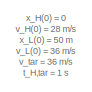
[diagram: root canvas - part 1/3, top left region]
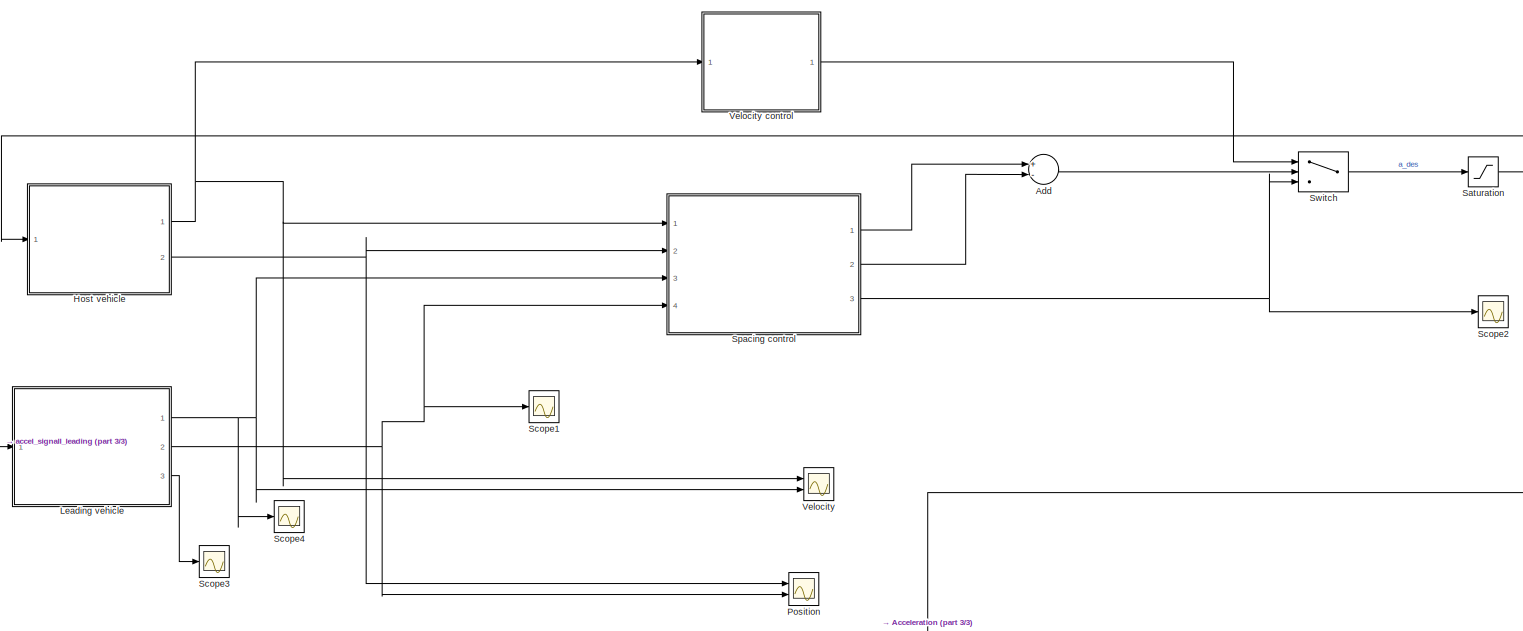
[diagram: root canvas - part 2/3, central region]
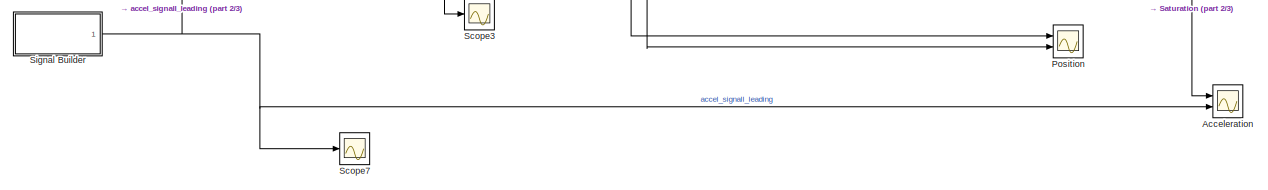
[diagram: root canvas - part 3/3, bottom center region]
MODEL slx_f30c1024a4a0
KIND model
CONFIG AbsTol = auto
CONFIG EnableMultiTasking = off
CONFIG FixedStep = auto
CONFIG MaxStep = auto
CONFIG MinStep = auto
CONFIG RelTol = 1e-12
CONFIG SampleTimeConstraint = Unconstrained
CONFIG Solver = VariableStepAuto
CONFIG SolverName = VariableStepAuto
CONFIG StartTime = 0.0
CONFIG StopTime = 70
WORKSPACE source: MAT-file member
WORKSPACE d_tar = 20
BLOCK [Scope] Acceleration
  Floating = off
  NumInputPorts = 2
  Ports = [2]
  ScopeSpecificationString = Simulink.scopes.TimeScopeBlockCfg('CurrentConfiguration', extmgr.ConfigurationSet(extmgr.Configuration('Core','General UI',true),extmgr.Configuration('Core','Source UI',true),extmgr.Configuration('Sources','WiredSimulink',true,'DataLoggingVariableName','ScopeData7'),extmgr.Configuration('Visuals','Time Domain',true,'SerializedDisplays',{struct('MinYLimReal','-3.875','MaxYLimReal','4.875','YLabelRe...<+1456ch>
BLOCK [Sum] Add
  InputSameDT = off
  Inputs = +-
  OutDataTypeStr = Inherit: Inherit via internal rule
  Ports = [2, 1]
  SaturateOnIntegerOverflow = off
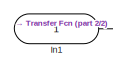
[diagram: Host vehicle - part 1/2, top right region]
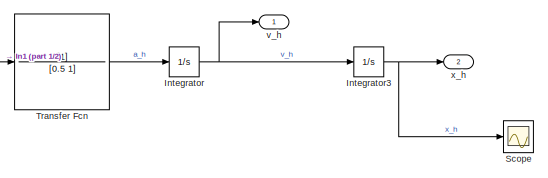
[diagram: Host vehicle - part 2/2, bottom left region]
BLOCK [SubSystem] Host vehicle
  Ports = [1, 2]
  RequestExecContextInheritance = off
BLOCK [Inport] Host vehicle/In1
  IconDisplay = Port number
BLOCK [Integrator] Host vehicle/Integrator
  InitialCondition = v_H0
  Ports = [1, 1]
BLOCK [Integrator] Host vehicle/Integrator3
  InitialCondition = x_H0
  Ports = [1, 1]
BLOCK [Scope] Host vehicle/Scope
  Floating = off
  NumInputPorts = 1
  Ports = [1]
  ScopeSpecificationString = Simulink.scopes.TimeScopeBlockCfg('CurrentConfiguration', extmgr.ConfigurationSet(extmgr.Configuration('Core','General UI',true),extmgr.Configuration('Core','Source UI',true),extmgr.Configuration('Sources','WiredSimulink',true),extmgr.Configuration('Visuals','Time Domain',true,'SerializedDisplays',{struct('MinYLimReal','-289.40886','MaxYLimReal','2604.67977','YLabelReal','','MinYLimMag',' 0.00000'...<+1370ch>
BLOCK [TransferFcn] Host vehicle/Transfer Fcn
  Denominator = [0.5 1]
BLOCK [Outport] Host vehicle/v_h
  IconDisplay = Port number
BLOCK [Outport] Host vehicle/x_h
  IconDisplay = Port number
  Port = 2
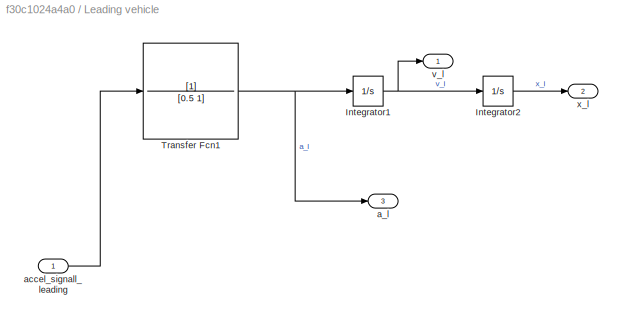
BLOCK [SubSystem] Leading vehicle
  Ports = [1, 3]
  RequestExecContextInheritance = off
BLOCK [Integrator] Leading vehicle/Integrator1
  InitialCondition = v_L0
  Ports = [1, 1]
BLOCK [Integrator] Leading vehicle/Integrator2
  InitialCondition = x_L0
  Ports = [1, 1]
BLOCK [TransferFcn] Leading vehicle/Transfer Fcn1
  Denominator = [0.5 1]
BLOCK [Outport] Leading vehicle/a_l
  IconDisplay = Port number
  Port = 3
BLOCK [Inport] Leading vehicle/accel_signall_leading
  IconDisplay = Port number
BLOCK [Outport] Leading vehicle/v_l
  IconDisplay = Port number
BLOCK [Outport] Leading vehicle/x_l
  IconDisplay = Port number
  Port = 2
BLOCK [Scope] Position
  Floating = off
  NumInputPorts = 2
  Ports = [2]
  ScopeSpecificationString = Simulink.scopes.TimeScopeBlockCfg('CurrentConfiguration', extmgr.ConfigurationSet(extmgr.Configuration('Core','General UI',true),extmgr.Configuration('Core','Source UI',true),extmgr.Configuration('Sources','WiredSimulink',true,'DataLoggingVariableName','ScopeData8'),extmgr.Configuration('Visuals','Time Domain',true,'SerializedDisplays',{struct('MinYLimReal','-295.00000','MaxYLimReal','2655.00000',...<+1492ch>
BLOCK [Saturate] Saturation
  InputPortMap = u0
  LowerLimit = -3
  Ports = [1, 1]
  UpperLimit = 5
BLOCK [Scope] Scope1
  Floating = off
  NumInputPorts = 1
  Ports = [1]
  ScopeSpecificationString = Simulink.scopes.TimeScopeBlockCfg('CurrentConfiguration', extmgr.ConfigurationSet(extmgr.Configuration('Core','General UI',true),extmgr.Configuration('Core','Source UI',true),extmgr.Configuration('Sources','WiredSimulink',true,'DataLoggingVariableName','ScopeData1'),extmgr.Configuration('Visuals','Time Domain',true,'SerializedDisplays',{struct('MinYLimReal','-238.75','MaxYLimReal','2648.75','YLabe...<+1410ch>
BLOCK [Scope] Scope2
  Floating = off
  NumInputPorts = 1
  Ports = [1]
  ScopeSpecificationString = Simulink.scopes.TimeScopeBlockCfg('CurrentConfiguration', extmgr.ConfigurationSet(extmgr.Configuration('Core','General UI',true),extmgr.Configuration('Core','Source UI',true),extmgr.Configuration('Sources','WiredSimulink',true,'DataLoggingVariableName','ScopeData1'),extmgr.Configuration('Visuals','Time Domain',true,'SerializedDisplays',{struct('MinYLimReal','-4.42689','MaxYLimReal','8.24769','YLab...<+1380ch>
BLOCK [Scope] Scope3
  Floating = off
  NumInputPorts = 1
  Ports = [1]
  ScopeSpecificationString = Simulink.scopes.TimeScopeBlockCfg('CurrentConfiguration', extmgr.ConfigurationSet(extmgr.Configuration('Core','General UI',true),extmgr.Configuration('Core','Source UI',true),extmgr.Configuration('Sources','WiredSimulink',true,'DataLoggingVariableName','ScopeData2'),extmgr.Configuration('Visuals','Time Domain',true,'SerializedDisplays',{struct('MinYLimReal','-2.49768','MaxYLimReal','2.49763','YLab...<+1410ch>
BLOCK [Scope] Scope4
  Floating = off
  NumInputPorts = 1
  Ports = [1]
  ScopeSpecificationString = Simulink.scopes.TimeScopeBlockCfg('CurrentConfiguration', extmgr.ConfigurationSet(extmgr.Configuration('Core','General UI',true),extmgr.Configuration('Core','Source UI',true),extmgr.Configuration('Sources','WiredSimulink',true,'DataLoggingVariableName','ScopeData3'),extmgr.Configuration('Visuals','Time Domain',true,'SerializedDisplays',{struct('MinYLimReal','28.125','MaxYLimReal','36.875','YLabelR...<+1400ch>
BLOCK [Scope] Scope7
  Floating = off
  NumInputPorts = 1
  Ports = [1]
  ScopeSpecificationString = Simulink.scopes.TimeScopeBlockCfg('CurrentConfiguration', extmgr.ConfigurationSet(extmgr.Configuration('Core','General UI',true),extmgr.Configuration('Core','Source UI',true),extmgr.Configuration('Sources','WiredSimulink',true,'DataLoggingVariableName','ScopeData6'),extmgr.Configuration('Visuals','Time Domain',true,'SerializedDisplays',{struct('MinYLimReal','-2.5','MaxYLimReal','2.5','YLabelReal',...<+1379ch>
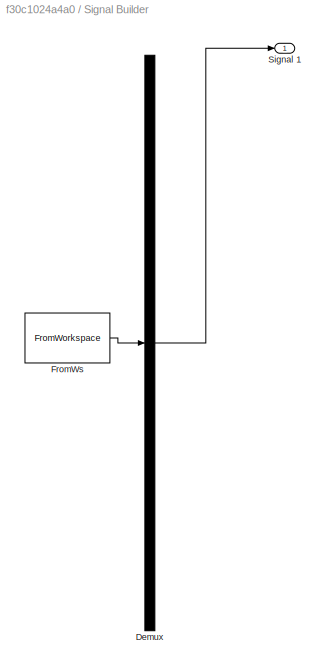
BLOCK [SubSystem] Signal Builder
  ClipboardFcn = sigbuilder_block('clipboard');
  CloseFcn = sigbuilder_block('close');
  ContinueFcn = sigbuilder_block('continue');
  CopyFcn = sigbuilder_block('copy');
  DeleteFcn = sigbuilder_block('delete');
  LoadFcn = sigbuilder_block('load');
  MaskHideContents = on
  ModelCloseFcn = sigbuilder_block('modelClose');
  NameChangeFcn = sigbuilder_block('namechange');
  OpenFcn = sigbuilder_block('open',[553.5 167.25 843.75 498.75 ]);
  PauseFcn = sigbuilder_block('pause');
  Ports = [0, 1]
  PreSaveFcn = sigbuilder_block('preSave');
  RequestExecContextInheritance = off
  StartFcn = sigbuilder_block('start');
  StopFcn = sigbuilder_block('stop');
  Tag = STV Subsys
BLOCK [Demux] Signal Builder/Demux
  Outputs = 1
  Ports = [1, 1]
  Tag = STV Demux
BLOCK [FromWorkspace] Signal Builder/FromWs
  SampleTime = 0
  Tag = STV FromWs
  VariableName = tuvar
  ZeroCross = on
BLOCK [Outport] Signal Builder/Signal 1
  IconDisplay = Port number
  Tag = STV Outport
  VectorParamsAs1DForOutWhenUnconnected = on
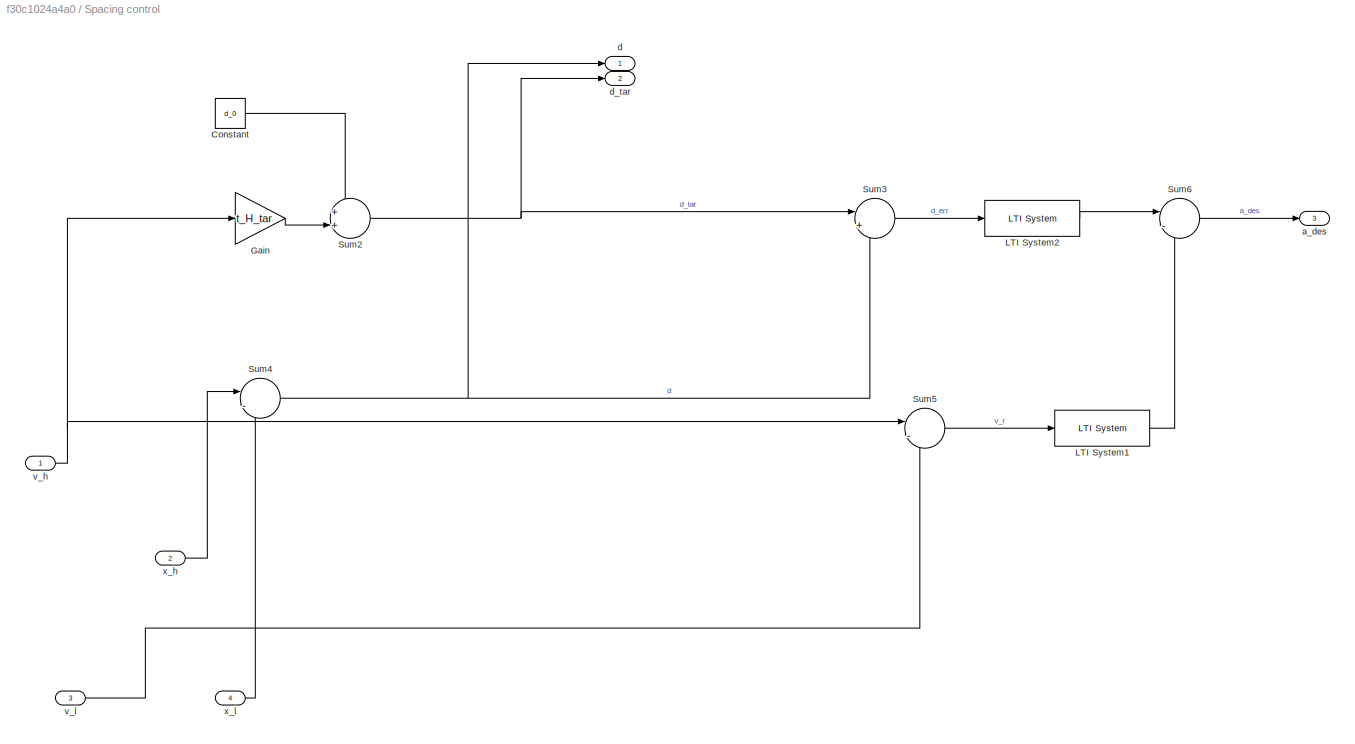
BLOCK [SubSystem] Spacing control
  Ports = [4, 3]
  RequestExecContextInheritance = off
BLOCK [Constant] Spacing control/Constant
  Value = d_0
BLOCK [Gain] Spacing control/Gain
  Gain = t_H_tar
  OutDataTypeStr = Inherit: Inherit via internal rule
  ParamDataTypeStr = Inherit: Inherit via internal rule
  SaturateOnIntegerOverflow = off
BLOCK [Reference] Spacing control/LTI System1  REF=cstblocks/LTI System
  Ports = [1, 1]
  SourceBlock = cstblocks/LTI System
  SourceProductBaseCode = CT
  SourceType = LTI Block
BLOCK [Reference] Spacing control/LTI System2  REF=cstblocks/LTI System
  Ports = [1, 1]
  SourceBlock = cstblocks/LTI System
  SourceProductBaseCode = CT
  SourceType = LTI Block
BLOCK [Sum] Spacing control/Sum2
  IconShape = round
  InputSameDT = off
  Inputs = ++|
  OutDataTypeStr = Inherit: Inherit via internal rule
  Ports = [2, 1]
  SaturateOnIntegerOverflow = off
BLOCK [Sum] Spacing control/Sum3
  IconShape = round
  InputSameDT = off
  Inputs = |+-
  OutDataTypeStr = Inherit: Inherit via internal rule
  Ports = [2, 1]
  SaturateOnIntegerOverflow = off
BLOCK [Sum] Spacing control/Sum4
  IconShape = round
  InputSameDT = off
  Inputs = |-+
  OutDataTypeStr = Inherit: Inherit via internal rule
  Ports = [2, 1]
  SaturateOnIntegerOverflow = off
BLOCK [Sum] Spacing control/Sum5
  IconShape = round
  InputSameDT = off
  Inputs = |-+
  OutDataTypeStr = Inherit: Inherit via internal rule
  Ports = [2, 1]
  SaturateOnIntegerOverflow = off
BLOCK [Sum] Spacing control/Sum6
  IconShape = round
  InputSameDT = off
  Inputs = |-+
  OutDataTypeStr = Inherit: Inherit via internal rule
  Ports = [2, 1]
  SaturateOnIntegerOverflow = off
BLOCK [Outport] Spacing control/a_des
  IconDisplay = Port number
  Port = 3
BLOCK [Outport] Spacing control/d
  IconDisplay = Port number
BLOCK [Outport] Spacing control/d_tar
  IconDisplay = Port number
  Port = 2
BLOCK [Inport] Spacing control/v_h
  IconDisplay = Port number
BLOCK [Inport] Spacing control/v_l
  IconDisplay = Port number
  Port = 3
BLOCK [Inport] Spacing control/x_h
  IconDisplay = Port number
  Port = 2
BLOCK [Inport] Spacing control/x_l
  IconDisplay = Port number
  Port = 4
BLOCK [Switch] Switch
  InputSameDT = off
  SaturateOnIntegerOverflow = off
BLOCK [Scope] Velocity
  Floating = off
  NumInputPorts = 2
  Ports = [2]
  ScopeSpecificationString = Simulink.scopes.TimeScopeBlockCfg('CurrentConfiguration', extmgr.ConfigurationSet(extmgr.Configuration('Core','General UI',true),extmgr.Configuration('Core','Source UI',true),extmgr.Configuration('Sources','WiredSimulink',true,'DataLoggingVariableName','ScopeData9'),extmgr.Configuration('Visuals','Time Domain',true,'SerializedDisplays',{struct('MinYLimReal','26.65988','MaxYLimReal','37.03779','YLa...<+1476ch>
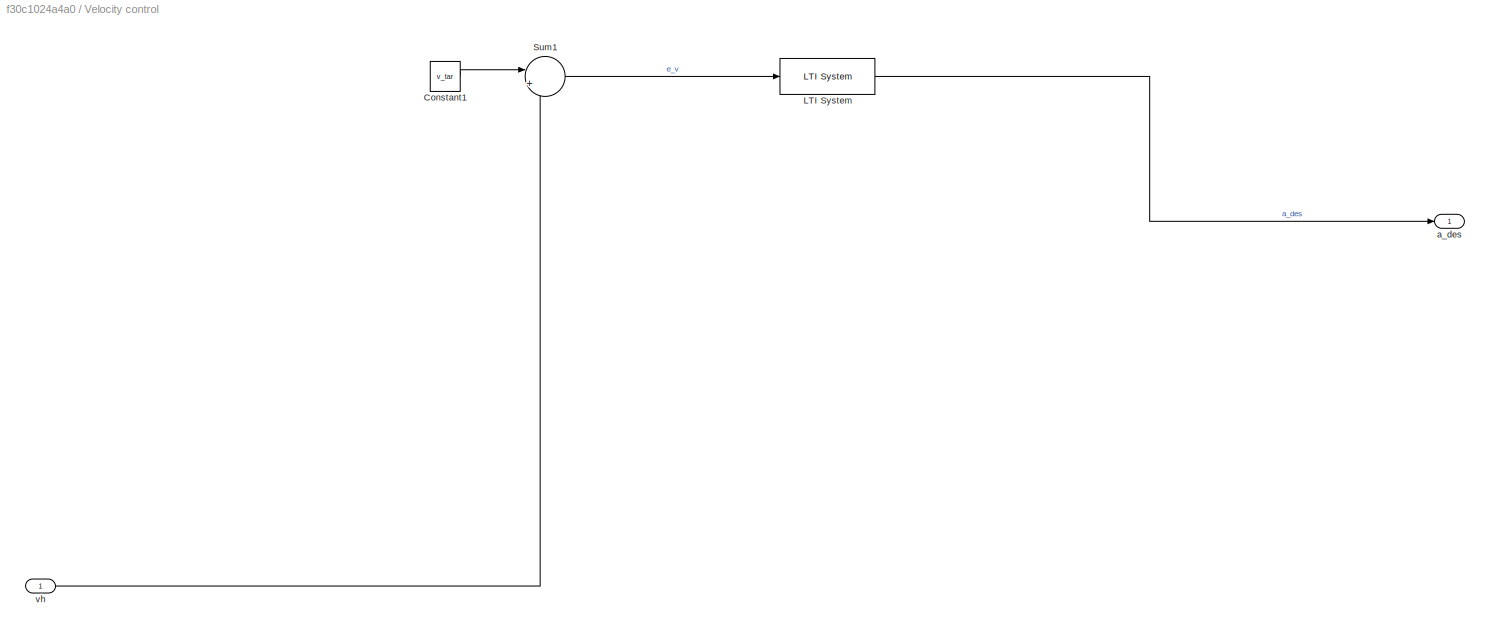
BLOCK [SubSystem] Velocity control
  Ports = [1, 1]
  RequestExecContextInheritance = off
BLOCK [Constant] Velocity control/Constant1
  Value = v_tar
BLOCK [Reference] Velocity control/LTI System  REF=cstblocks/LTI System
  Ports = [1, 1]
  SourceBlock = cstblocks/LTI System
  SourceProductBaseCode = CT
  SourceType = LTI Block
BLOCK [Sum] Velocity control/Sum1
  IconShape = round
  InputSameDT = off
  Inputs = |+-
  OutDataTypeStr = Inherit: Inherit via internal rule
  Ports = [2, 1]
  SaturateOnIntegerOverflow = off
BLOCK [Outport] Velocity control/a_des
  IconDisplay = Port number
BLOCK [Inport] Velocity control/vh
  IconDisplay = Port number
ANNOTATION (root): x_H(0) = 0 v_H(0) = 28 m/s x_L(0) = 50 m v_L(0) = 36 m/s v_tar = 36 m/s t_H,tar = 1 s d_0 = 8 m K_v = 0.5 K_d,der = 0.2 K_v,r = 0.4 max a_des = 5 m/s^2 min a_des = -3 m/s^2
LINE Add:1 -> Switch:2
LINE Host vehicle/In1:1 -> Host vehicle/Transfer Fcn:1
NET Host vehicle/Integrator3:1 -> Host vehicle/Scope:1, Host vehicle/x_h:1
NET Host vehicle/Integrator:1 -> Host vehicle/Integrator3:1, Host vehicle/v_h:1
LINE Host vehicle/Transfer Fcn:1 -> Host vehicle/Integrator:1
NET Host vehicle:1 -> Spacing control:1, Velocity control:1, Velocity:1
NET Host vehicle:2 -> Position:1, Spacing control:2
NET Leading vehicle/Integrator1:1 -> Leading vehicle/Integrator2:1, Leading vehicle/v_l:1
LINE Leading vehicle/Integrator2:1 -> Leading vehicle/x_l:1
NET Leading vehicle/Transfer Fcn1:1 -> Leading vehicle/Integrator1:1, Leading vehicle/a_l:1
LINE Leading vehicle/accel_signall_leading:1 -> Leading vehicle/Transfer Fcn1:1
NET Leading vehicle:1 -> Scope4:1, Spacing control:3, Velocity:2
NET Leading vehicle:2 -> Position:2, Scope1:1, Spacing control:4
LINE Leading vehicle:3 -> Scope3:1
NET Saturation:1 -> Acceleration:1, Host vehicle:1
NET Signal Builder:1 -> Acceleration:2, Leading vehicle:1, Scope7:1
LINE Spacing control/Constant:1 -> Spacing control/Sum2:1
LINE Spacing control/Gain:1 -> Spacing control/Sum2:2
LINE Spacing control/LTI System1:1 -> Spacing control/Sum6:2
LINE Spacing control/LTI System2:1 -> Spacing control/Sum6:1
NET Spacing control/Sum2:1 -> Spacing control/Sum3:1, Spacing control/d_tar:1
LINE Spacing control/Sum3:1 -> Spacing control/LTI System2:1
NET Spacing control/Sum4:1 -> Spacing control/Sum3:2, Spacing control/d:1
LINE Spacing control/Sum5:1 -> Spacing control/LTI System1:1
LINE Spacing control/Sum6:1 -> Spacing control/a_des:1
NET Spacing control/v_h:1 -> Spacing control/Gain:1, Spacing control/Sum5:1
LINE Spacing control/v_l:1 -> Spacing control/Sum5:2
LINE Spacing control/x_h:1 -> Spacing control/Sum4:1
LINE Spacing control/x_l:1 -> Spacing control/Sum4:2
LINE Spacing control:1 -> Add:1
LINE Spacing control:2 -> Add:2
NET Spacing control:3 -> Scope2:1, Switch:3
LINE Switch:1 -> Saturation:1
LINE Velocity control/Constant1:1 -> Velocity control/Sum1:1
LINE Velocity control/LTI System:1 -> Velocity control/a_des:1
LINE Velocity control/Sum1:1 -> Velocity control/LTI System:1
LINE Velocity control/vh:1 -> Velocity control/Sum1:2
LINE Velocity control:1 -> Switch:1
note: NET lines group one-source signal fan-out (src -> all destinations, sorted); 1:1 wires keep LINE
